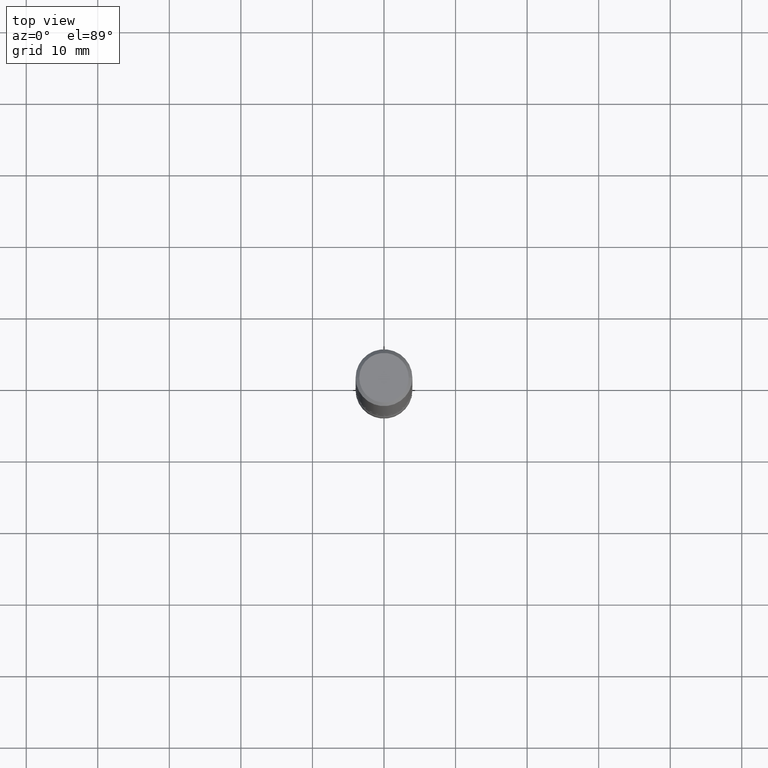
[diagram: clean part render]
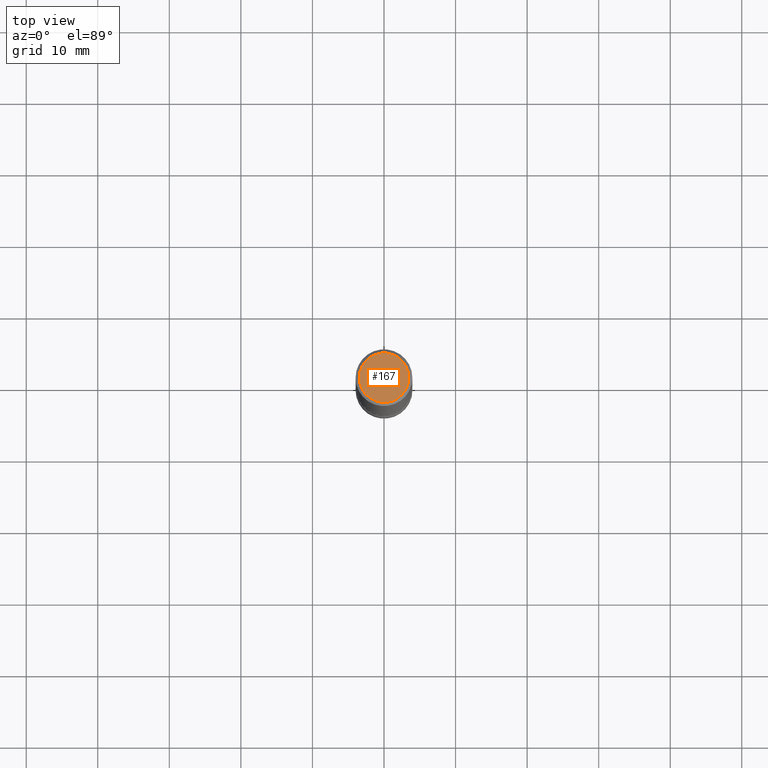
[diagram: same view with one face highlighted and labeled with its STEP entity id]
A machine part, top view. The second image highlights one B-rep face of the part: STEP entity #167.
In plain terms, the highlighted planar face has unit normal (0, -0, -1).
Its self-contained STEP definition (entity closure, byte-faithful):
#7 = ORIENTED_EDGE ( 'NONE', *, *, #493, .T. ) ;
#12 = AXIS2_PLACEMENT_3D ( 'NONE', #261, #185, #232 ) ;
#98 = DIRECTION ( 'NONE',  ( 1.000000000000000000, -6.982962677686266711E-15, 4.876176775795935232E-29 ) ) ;
#107 = AXIS2_PLACEMENT_3D ( 'NONE', #296, #117, #552 ) ;
#117 = DIRECTION ( 'NONE',  ( 2.438088387897960049E-29, -3.491481338843145188E-15, -1.000000000000000000 ) ) ;
#167 = ADVANCED_FACE ( 'NONE', ( #298 ), #564, .F. ) ;
#185 = DIRECTION ( 'NONE',  ( -2.445468806185136597E-29, 3.491481338843145583E-15, 1.000000000000000000 ) ) ;
#232 = DIRECTION ( 'NONE',  ( 1.000000000000000000, -6.982962677686266711E-15, 4.876176775795935232E-29 ) ) ;
#261 = CARTESIAN_POINT ( 'NONE',  ( 0.000000000000000000, 0.000000000000000000, 0.000000000000000000 ) ) ;
#296 = CARTESIAN_POINT ( 'NONE',  ( 9.514286648347517883E-16, 0.1362499999999997324, -4.757143324173775705E-16 ) ) ;
#298 = FACE_OUTER_BOUND ( 'NONE', #335, .T. ) ;
#318 = CARTESIAN_POINT ( 'NONE',  ( 0.1362499999999997324, -1.038262645562516349E-15, 6.957025900226682464E-30 ) ) ;
#335 = EDGE_LOOP ( 'NONE', ( #7, #759 ) ) ;
#493 = EDGE_CURVE ( 'NONE', #757, #502, #713, .T. ) ;
#502 = VERTEX_POINT ( 'NONE', #318 ) ;
#552 = DIRECTION ( 'NONE',  ( -1.000000000000000000, 6.982962677686265922E-15, -4.876176775795935793E-29 ) ) ;
#564 = PLANE ( 'NONE',  #107 ) ;
#615 = DIRECTION ( 'NONE',  ( -2.445468806185136597E-29, 3.491481338843145583E-15, 1.000000000000000000 ) ) ;
#638 = CIRCLE ( 'NONE', #714, 0.1362499999999997324 ) ;
#675 = CARTESIAN_POINT ( 'NONE',  ( 0.000000000000000000, 0.000000000000000000, 0.000000000000000000 ) ) ;
#686 = CARTESIAN_POINT ( 'NONE',  ( -0.1362499999999997324, 9.863434782231832402E-16, -6.775751096333125871E-30 ) ) ;
#713 = CIRCLE ( 'NONE', #12, 0.1362499999999997324 ) ;
#714 = AXIS2_PLACEMENT_3D ( 'NONE', #675, #615, #98 ) ;
#718 = EDGE_CURVE ( 'NONE', #502, #757, #638, .T. ) ;
#757 = VERTEX_POINT ( 'NONE', #686 ) ;
#759 = ORIENTED_EDGE ( 'NONE', *, *, #718, .T. ) ;